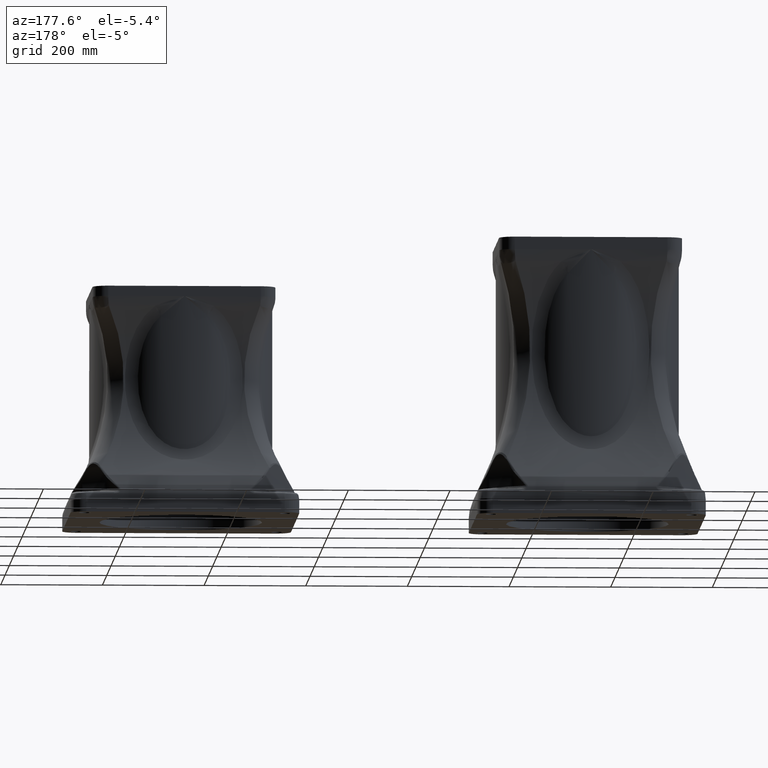
[diagram: clean part render]
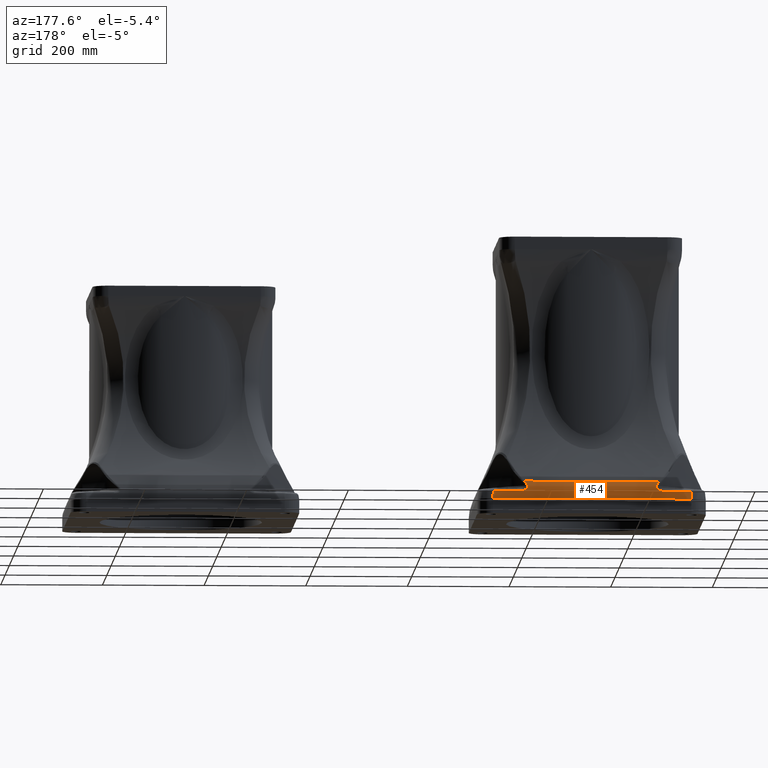
[diagram: same view with one face highlighted and labeled with its STEP entity id]
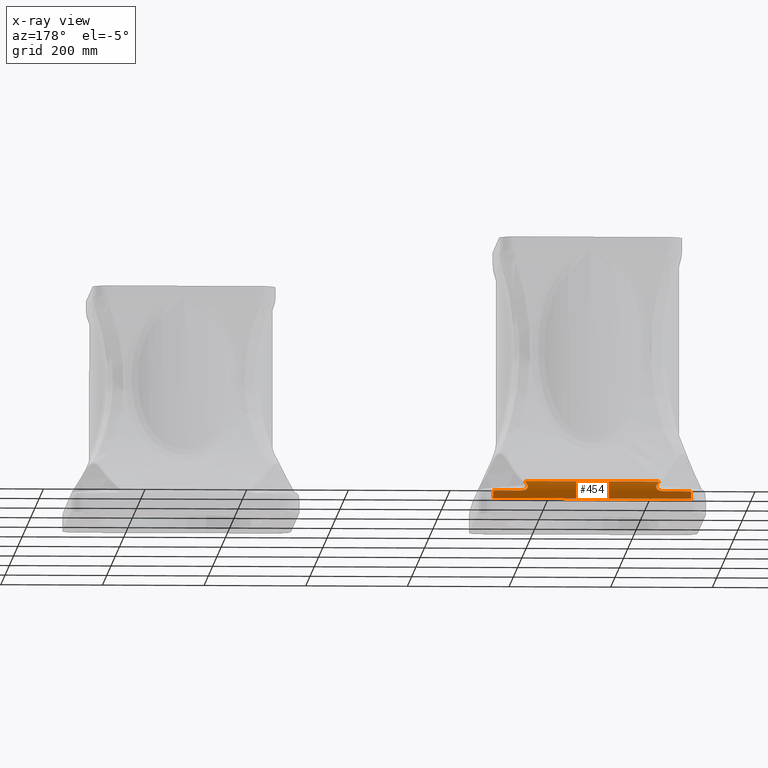
[diagram: x-ray of the same camera — body ghosted, the highlighted face saturated]
A machine part, auxiliary view. The second image highlights one B-rep face of the part: STEP entity #454.
The next image is the same camera in x-ray: the body ghosted, the highlighted face saturated — about 0% of this face is hidden behind the body in this view.
In plain terms, the highlighted face is a SurfaceOfExtrusion surface.
Its self-contained STEP definition (entity closure, byte-faithful):
#454=ADVANCED_FACE('',(#979),#980,.T.);
#979=FACE_OUTER_BOUND('',#19970,.T.);
#980=SURFACE_OF_LINEAR_EXTRUSION('',#19971,#19972);
#19970=EDGE_LOOP('',(#21677,#21678,#21679,#21680,#21681,#21682,#21683,#21684,#21685,#21686));
#19971=(B_SPLINE_CURVE(3,(#21688,#21689,#21690,#21691,#21692,#21693,#21694),.UNSPECIFIED.,.T.,.F.)B_SPLINE_CURVE_WITH_KNOTS((4,3,4),(0.0,0.5,1.0),.UNSPECIFIED.)RATIONAL_B_SPLINE_CURVE((1.0,0.333333333333334,0.333333333333334,1.0,0.333333333333334,0.333333333333334,1.0))BOUNDED_CURVE()REPRESENTATION_ITEM('')GEOMETRIC_REPRESENTATION_ITEM()CURVE());
#19972=VECTOR('',#21701,1.0);
#21677=ORIENTED_EDGE('',*,*,#22230,.T.);
#21678=ORIENTED_EDGE('',*,*,#22219,.T.);
#21679=ORIENTED_EDGE('',*,*,#22070,.T.);
#21680=ORIENTED_EDGE('',*,*,#22222,.T.);
#21681=ORIENTED_EDGE('',*,*,#22181,.F.);
#21682=ORIENTED_EDGE('',*,*,#22072,.T.);
#21683=ORIENTED_EDGE('',*,*,#22227,.T.);
#21684=ORIENTED_EDGE('',*,*,#22225,.T.);
#21685=ORIENTED_EDGE('',*,*,#22231,.T.);
#21686=ORIENTED_EDGE('',*,*,#22144,.F.);
#21688=CARTESIAN_POINT('',(62.8571428571424,330.0,-423.077242622139));
#21689=CARTESIAN_POINT('',(62.8571428571424,429.999999999999,-423.077242622139));
#21690=CARTESIAN_POINT('',(62.8571428571424,429.999999999999,-545.299464822139));
#21691=CARTESIAN_POINT('',(62.8571428571424,330.0,-545.299464822139));
#21692=CARTESIAN_POINT('',(62.8571428571424,230.0,-545.299464822139));
#21693=CARTESIAN_POINT('',(62.8571428571424,230.0,-423.077242622139));
#21694=CARTESIAN_POINT('',(62.8571428571424,330.0,-423.077242622139));
#21701=DIRECTION('',(-1.0,0.0,0.0));
#22070=EDGE_CURVE('',#22829,#22834,#22836,.T.);
#22072=EDGE_CURVE('',#22840,#22838,#22841,.T.);
#22144=EDGE_CURVE('',#22902,#22928,#22948,.T.);
#22181=EDGE_CURVE('',#22840,#23007,#23008,.T.);
#22219=EDGE_CURVE('',#23046,#22829,#23054,.F.);
#22222=EDGE_CURVE('',#22834,#23007,#23057,.T.);
#22225=EDGE_CURVE('',#23060,#22658,#23061,.F.);
#22227=EDGE_CURVE('',#22838,#23060,#23063,.T.);
#22230=EDGE_CURVE('',#22902,#23046,#23066,.T.);
#22231=EDGE_CURVE('',#22658,#22928,#23067,.T.);
#22658=VERTEX_POINT('',#29619);
#22829=VERTEX_POINT('',#31540);
#22834=VERTEX_POINT('',#31579);
#22836=B_SPLINE_CURVE_WITH_KNOTS('',3,(#31590,#31591,#31592,#31593,#31594,#31595,#31596,#31597,#31598,#31599,#31600,#31601,#31602,#31603,#31604,#31605,#31606,#31607,#31608,#31609,#31610,#31611,#31612,#31613,#31614),.UNSPECIFIED.,.F.,.F.,(4,1,1,1,1,1,1,1,1,1,1,1,1,1,1,1,1,1,1,1,1,1,4),(0.0,0.0195439509230453,0.0389886335888154,0.0583413704931639,0.0776095835366027,0.0968007844933046,0.115922564887605,0.17463256038316,0.231992028684127,0.291458214613283,0.348754413401144,0.468983544443174,0.533884823790572,0.594663674885302,0.662890774854594,0.729035157456137,0.795955380495517,0.866686484220508,0.891660670617728,0.917398696504266,0.943984950033002,0.971495804477187,1.0),.UNSPECIFIED.);
#22838=VERTEX_POINT('',#31616);
#22840=VERTEX_POINT('',#31627);
#22841=B_SPLINE_CURVE_WITH_KNOTS('',3,(#31628,#31629,#31630,#31631,#31632,#31633,#31634,#31635,#31636,#31637,#31638,#31639,#31640),.UNSPECIFIED.,.F.,.F.,(4,1,1,1,1,1,1,1,1,1,4),(0.0,0.107171267205061,0.212794158456628,0.316851045586237,0.419324636343024,0.520198011106039,0.619454658764964,0.717078511814198,0.813053980729607,0.907365987723302,1.0),.UNSPECIFIED.);
#22902=VERTEX_POINT('',#32361);
#22928=VERTEX_POINT('',#32650);
#22948=LINE('',#32695,#32696);
#23007=VERTEX_POINT('',#33052);
#23008=LINE('',#33053,#33054);
#23046=VERTEX_POINT('',#33836);
#23054=LINE('',#33913,#33914);
#23057=B_SPLINE_CURVE_WITH_KNOTS('',3,(#33951,#33952,#33953,#33954,#33955,#33956,#33957,#33958,#33959,#33960,#33961,#33962),.UNSPECIFIED.,.F.,.F.,(4,1,1,1,1,1,1,1,1,4),(0.0,0.103030521512252,0.208130669186572,0.315280381015493,0.42445877559161,0.535644208648065,0.648814330617927,0.763946145446984,0.881016070832305,1.0),.UNSPECIFIED.);
#23060=VERTEX_POINT('',#33983);
#23061=LINE('',#33984,#33985);
#23063=B_SPLINE_CURVE_WITH_KNOTS('',3,(#33996,#33997,#33998,#33999,#34000,#34001,#34002,#34003,#34004,#34005,#34006,#34007,#34008,#34009,#34010,#34011,#34012,#34013,#34014,#34015,#34016,#34017,#34018,#34019,#34020,#34021),.UNSPECIFIED.,.F.,.F.,(4,1,1,1,1,1,1,1,1,1,1,1,1,1,1,1,1,1,1,1,1,1,1,4),(0.0,0.0159691977101958,0.0316232740487652,0.0469732060976518,0.0620306560975618,0.0768079992163315,0.0913183481886758,0.105575573761629,0.119594319770769,0.133390011590261,0.204404421779703,0.271609388761158,0.337628082437221,0.405764777533275,0.466707528679002,0.531824951984039,0.651815725069952,0.709427734071698,0.769265903785854,0.826242827894154,0.884587523687944,0.922724480256788,0.961175649902438,1.0),.UNSPECIFIED.);
#23066=B_SPLINE_CURVE_WITH_KNOTS('',3,(#34053,#34054,#34055,#34056,#34057,#34058,#34059,#34060,#34061,#34062,#34063,#34064,#34065,#34066,#34067,#34068,#34069,#34070,#34071,#34072,#34073),.UNSPECIFIED.,.F.,.F.,(4,1,1,1,1,1,1,1,1,1,1,1,1,1,1,1,1,1,4),(0.0,0.0551381701981593,0.110367352687521,0.165679892567947,0.221068053782042,0.276524028470232,0.3320399464992,0.387607885146332,0.443219878922211,0.498867929512668,0.554544015821067,0.610240104091703,0.665948158093875,0.721660149346569,0.777368067363079,0.833063929894685,0.888739793152534,0.944387761986473,1.0),.UNSPECIFIED.);
#23067=B_SPLINE_CURVE_WITH_KNOTS('',3,(#34074,#34075,#34076,#34077,#34078,#34079,#34080,#34081,#34082,#34083,#34084,#34085,#34086,#34087,#34088,#34089,#34090,#34091,#34092,#34093,#34094),.UNSPECIFIED.,.F.,.F.,(4,1,1,1,1,1,1,1,1,1,1,1,1,1,1,1,1,1,4),(0.0,0.0556122380135261,0.111260206847457,0.166936070105306,0.222631932636917,0.278339850653424,0.334051841906128,0.389759895908289,0.44545598417893,0.501132070487325,0.556780121077773,0.61239211485366,0.6679600535008,0.723475971529764,0.778931946217954,0.834320107432045,0.889632647312479,0.944861829801833,1.0),.UNSPECIFIED.);
#29619=CARTESIAN_POINT('',(32.2330137227713,378.439677164071,-469.040800108652));
#31540=CARTESIAN_POINT('',(-302.911872949151,378.43967716407,-469.040800108651));
#31579=CARTESIAN_POINT('',(-290.19076171377,374.130890177812,-455.46055319754));
#31590=CARTESIAN_POINT('',(-302.911872949151,378.439677164071,-469.040800108652));
#31591=CARTESIAN_POINT('',(-302.754567527801,378.43949989704,-469.039953162521));
#31592=CARTESIAN_POINT('',(-302.440755675803,378.439146263357,-469.038263572094));
#31593=CARTESIAN_POINT('',(-301.97135076195,378.436266239763,-469.02451167351));
#31594=CARTESIAN_POINT('',(-301.504515283519,378.431657841748,-469.002534905141));
#31595=CARTESIAN_POINT('',(-301.040251150066,378.425147125312,-468.971543822054));
#31596=CARTESIAN_POINT('',(-300.578552024808,378.416767165126,-468.931753122107));
#31597=CARTESIAN_POINT('',(-299.802156096634,378.399391715168,-468.849509506967));
#31598=CARTESIAN_POINT('',(-298.725231395015,378.365815048052,-468.691542963089));
#31599=CARTESIAN_POINT('',(-297.343916406095,378.302162786906,-468.397175307692));
#31600=CARTESIAN_POINT('',(-295.997499972813,378.216931879524,-468.011827022595));
#31601=CARTESIAN_POINT('',(-294.214179785061,378.066034102343,-467.349570622541));
#31602=CARTESIAN_POINT('',(-292.483292036749,377.848488498075,-466.437472258036));
#31603=CARTESIAN_POINT('',(-290.946135558862,377.533107952903,-465.219860572786));
#31604=CARTESIAN_POINT('',(-289.90635542627,377.221963557126,-464.088448649816));
#31605=CARTESIAN_POINT('',(-289.104021884801,376.836415208099,-462.777642570646));
#31606=CARTESIAN_POINT('',(-288.633666638568,376.361809480966,-461.284054710742));
#31607=CARTESIAN_POINT('',(-288.549746682428,375.824648250308,-459.720582976816));
#31608=CARTESIAN_POINT('',(-288.77944292926,375.372411747428,-458.50245976107));
#31609=CARTESIAN_POINT('',(-289.067704085165,375.033082203334,-457.632051168593));
#31610=CARTESIAN_POINT('',(-289.286785011121,374.816794065148,-457.090884211444));
#31611=CARTESIAN_POINT('',(-289.547352271578,374.593901113501,-456.547151704046));
#31612=CARTESIAN_POINT('',(-289.84712983751,374.364131466585,-455.999501561643));
#31613=CARTESIAN_POINT('',(-290.074871538319,374.209551023169,-455.642314043346));
#31614=CARTESIAN_POINT('',(-290.19076171377,374.130890177812,-455.46055319754));
#31616=CARTESIAN_POINT('',(-34.0949525719449,374.130890177812,-455.46055319754));
#31627=CARTESIAN_POINT('',(-29.6411959083345,371.109302325581,-449.40275703219));
#31628=CARTESIAN_POINT('',(-29.6411959083345,371.109302325581,-449.40275703219));
#31629=CARTESIAN_POINT('',(-29.8083507914506,371.225217093667,-449.608945735131));
#31630=CARTESIAN_POINT('',(-30.1402455577645,371.4553719306,-450.018344193038));
#31631=CARTESIAN_POINT('',(-30.6281308098254,371.791538027917,-450.636623897372));
#31632=CARTESIAN_POINT('',(-31.1041409903119,372.117989539511,-451.251885167819));
#31633=CARTESIAN_POINT('',(-31.5678361628369,372.434369172195,-451.864347208666));
#31634=CARTESIAN_POINT('',(-32.0193343516761,372.740910596961,-452.473453020619));
#31635=CARTESIAN_POINT('',(-32.4585953103701,373.037693049374,-453.078871514542));
#31636=CARTESIAN_POINT('',(-32.8856644026781,373.324883585982,-453.680177692341));
#31637=CARTESIAN_POINT('',(-33.3004038199045,373.602499734614,-454.277147085439));
#31638=CARTESIAN_POINT('',(-33.7033083970218,373.871101551962,-454.868913892729));
#31639=CARTESIAN_POINT('',(-33.9651880422424,374.044813705815,-455.264523737489));
#31640=CARTESIAN_POINT('',(-34.0949525719449,374.130890177812,-455.46055319754));
#32361=CARTESIAN_POINT('',(-357.142857142857,380.0,-484.188353722139));
#32650=CARTESIAN_POINT('',(32.8571428571429,380.0,-484.188353722139));
#32695=CARTESIAN_POINT('',(62.857142857143,380.0,-484.188353722139));
#32696=VECTOR('',#34546,1.0);
#33052=CARTESIAN_POINT('',(-294.64451837738,371.109302325581,-449.40275703219));
#33053=CARTESIAN_POINT('',(62.8571428571424,371.109302325581,-449.40275703219));
#33054=VECTOR('',#34590,1.0);
#33836=CARTESIAN_POINT('',(-356.518728008485,378.439677164071,-469.040800108651));
#33913=CARTESIAN_POINT('',(62.8571428571424,378.43967716407,-469.040800108651));
#33914=VECTOR('',#34599,1.0);
#33951=CARTESIAN_POINT('',(-290.19076171377,374.130890177812,-455.46055319754));
#33952=CARTESIAN_POINT('',(-290.335153003433,374.035099811502,-455.242587662026));
#33953=CARTESIAN_POINT('',(-290.626836043577,373.841594889376,-454.802278207114));
#33954=CARTESIAN_POINT('',(-291.07681387278,373.541396310756,-454.143895996447));
#33955=CARTESIAN_POINT('',(-291.541399964082,373.230031071914,-453.479186542021));
#33956=CARTESIAN_POINT('',(-292.021205670341,372.906791157416,-452.809270470812));
#33957=CARTESIAN_POINT('',(-292.516071635333,372.571628861292,-452.134495506044));
#33958=CARTESIAN_POINT('',(-293.026007902719,372.224373973837,-451.455378692622));
#33959=CARTESIAN_POINT('',(-293.55114284041,371.864733197788,-450.772638885866));
#33960=CARTESIAN_POINT('',(-294.090940598511,371.493123575226,-450.086065805385));
#33961=CARTESIAN_POINT('',(-294.458997674373,371.237932467146,-449.631754525971));
#33962=CARTESIAN_POINT('',(-294.64451837738,371.109302325581,-449.40275703219));
#33983=CARTESIAN_POINT('',(-21.3738413365635,378.43967716407,-469.040800108651));
#33984=CARTESIAN_POINT('',(62.8571428571424,378.43967716407,-469.040800108651));
#33985=VECTOR('',#34600,1.0);
#33996=CARTESIAN_POINT('',(-34.0949525719449,374.130890177812,-455.46055319754));
#33997=CARTESIAN_POINT('',(-34.1605073371345,374.174916106659,-455.561976338273));
#33998=CARTESIAN_POINT('',(-34.2903232704339,374.262099197409,-455.762821229325));
#33999=CARTESIAN_POINT('',(-34.472113092669,374.392220065372,-456.067804754874));
#34000=CARTESIAN_POINT('',(-34.6418219469875,374.520189954757,-456.371611125407));
#34001=CARTESIAN_POINT('',(-34.798711201975,374.646070036314,-456.67466994305));
#34002=CARTESIAN_POINT('',(-34.9429716303431,374.769862555853,-456.976823660015));
#34003=CARTESIAN_POINT('',(-35.0745524969731,374.891586724986,-457.278071633864));
#34004=CARTESIAN_POINT('',(-35.1934635994133,375.011253150513,-457.578359552268));
#34005=CARTESIAN_POINT('',(-35.2997065121785,375.128891523768,-457.877695598248));
#34006=CARTESIAN_POINT('',(-35.5230084431607,375.404767323774,-458.589496086597));
#34007=CARTESIAN_POINT('',(-35.7371075909317,375.827588323082,-459.728632570609));
#34008=CARTESIAN_POINT('',(-35.650130475862,376.365615473944,-461.295538842806));
#34009=CARTESIAN_POINT('',(-35.1763227271977,376.839779668727,-462.788730465246));
#34010=CARTESIAN_POINT('',(-34.3721514423923,377.224683880262,-464.098008055485));
#34011=CARTESIAN_POINT('',(-33.3291381837848,377.53575919986,-465.229758652962));
#34012=CARTESIAN_POINT('',(-31.789055826711,377.850519155297,-466.445749804339));
#34013=CARTESIAN_POINT('',(-30.0551394163475,378.067769350555,-467.356996465439));
#34014=CARTESIAN_POINT('',(-28.2677008244328,378.218485124542,-468.018734730426));
#34015=CARTESIAN_POINT('',(-26.9183689266949,378.303431508742,-468.4029911867));
#34016=CARTESIAN_POINT('',(-25.5396386634853,378.366555614348,-468.695011047146));
#34017=CARTESIAN_POINT('',(-24.317117319171,378.404519931536,-468.873646832279));
#34018=CARTESIAN_POINT('',(-23.2359761780615,378.42617044786,-468.976365429384));
#34019=CARTESIAN_POINT('',(-22.3083551950918,378.437586974735,-469.030809247013));
#34020=CARTESIAN_POINT('',(-21.6863472270893,378.43897819479,-469.037459116878));
#34021=CARTESIAN_POINT('',(-21.3738413365634,378.439677164071,-469.040800108652));
#34053=CARTESIAN_POINT('',(-357.142857142858,380.0,-484.188353722139));
#34054=CARTESIAN_POINT('',(-357.142485746046,379.999086407802,-483.90766941801));
#34055=CARTESIAN_POINT('',(-357.141742339387,379.997257715411,-483.34583750599));
#34056=CARTESIAN_POINT('',(-357.135741711391,379.982448674986,-482.502558545335));
#34057=CARTESIAN_POINT('',(-357.126166824498,379.958756359547,-481.658257728838));
#34058=CARTESIAN_POINT('',(-357.112665226808,379.925276437936,-480.813179886704));
#34059=CARTESIAN_POINT('',(-357.095331568875,379.882209951102,-479.967571742919));
#34060=CARTESIAN_POINT('',(-357.074140441692,379.829468231157,-479.121681683646));
#34061=CARTESIAN_POINT('',(-357.049098668016,379.767047582822,-478.275759517959));
#34062=CARTESIAN_POINT('',(-357.02020441513,379.694928760302,-477.430056238412));
#34063=CARTESIAN_POINT('',(-356.987458182994,379.613104043276,-476.584823766417));
#34064=CARTESIAN_POINT('',(-356.950859802959,379.521569892057,-475.740314737837));
#34065=CARTESIAN_POINT('',(-356.910409439851,379.420329442034,-474.896782125094));
#34066=CARTESIAN_POINT('',(-356.866106587962,379.309390054692,-474.054479458532));
#34067=CARTESIAN_POINT('',(-356.817953084922,379.188770743213,-473.213658801986));
#34068=CARTESIAN_POINT('',(-356.765942059986,379.058474990248,-472.3745771044));
#34069=CARTESIAN_POINT('',(-356.710099120081,378.9185920529,-471.537471291616));
#34070=CARTESIAN_POINT('',(-356.650328713612,378.768919028851,-470.702649981505));
#34071=CARTESIAN_POINT('',(-356.586987165621,378.610370403033,-469.870150194056));
#34072=CARTESIAN_POINT('',(-356.541476188968,378.496562727415,-469.317190943486));
#34073=CARTESIAN_POINT('',(-356.518728008486,378.439677164071,-469.040800108652));
#34074=CARTESIAN_POINT('',(32.2330137227713,378.439677164071,-469.040800108652));
#34075=CARTESIAN_POINT('',(32.2557619032537,378.496562727414,-469.317190943486));
#34076=CARTESIAN_POINT('',(32.301272879907,378.610370403033,-469.870150194056));
#34077=CARTESIAN_POINT('',(32.3646144278977,378.768919028851,-470.702649981505));
#34078=CARTESIAN_POINT('',(32.4243848343667,378.9185920529,-471.537471291616));
#34079=CARTESIAN_POINT('',(32.4802277742718,379.058474990247,-472.3745771044));
#34080=CARTESIAN_POINT('',(32.5322387992069,379.188770743213,-473.213658801986));
#34081=CARTESIAN_POINT('',(32.5803923022473,379.309390054692,-474.054479458532));
#34082=CARTESIAN_POINT('',(32.6246951541363,379.420329442034,-474.896782125094));
#34083=CARTESIAN_POINT('',(32.665145517244,379.521569892057,-475.740314737837));
#34084=CARTESIAN_POINT('',(32.7017438972798,379.613104043276,-476.584823766417));
#34085=CARTESIAN_POINT('',(32.734490129415,379.694928760301,-477.430056238412));
#34086=CARTESIAN_POINT('',(32.7633843823017,379.767047582822,-478.275759517959));
#34087=CARTESIAN_POINT('',(32.788426155977,379.829468231158,-479.121681683645));
#34088=CARTESIAN_POINT('',(32.8096172831604,379.882209951102,-479.967571742919));
#34089=CARTESIAN_POINT('',(32.8269509410933,379.925276437936,-480.813179886703));
#34090=CARTESIAN_POINT('',(32.8404525387832,379.958756359547,-481.658257728838));
#34091=CARTESIAN_POINT('',(32.8500274256762,379.982448674986,-482.502558545335));
#34092=CARTESIAN_POINT('',(32.8560280536721,379.997257715411,-483.34583750599));
#34093=CARTESIAN_POINT('',(32.8567714603312,379.999086407802,-483.907669418009));
#34094=CARTESIAN_POINT('',(32.8571428571429,380.0,-484.188353722139));
#34546=DIRECTION('',(1.0,0.0,0.0));
#34590=DIRECTION('',(-1.0,0.0,0.0));
#34599=DIRECTION('',(-1.0,0.0,0.0));
#34600=DIRECTION('',(-1.0,0.0,0.0));